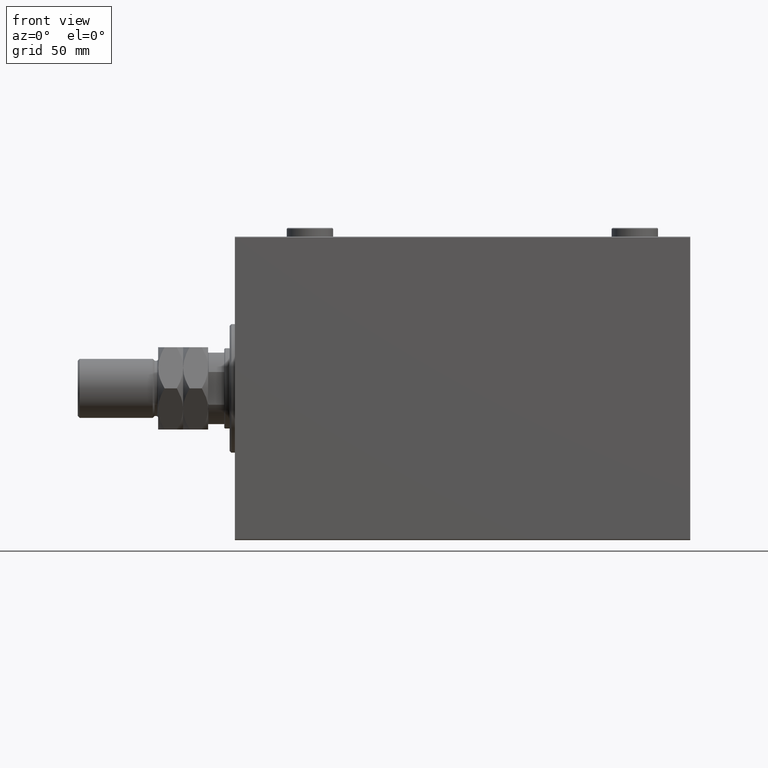
[diagram: clean part render]
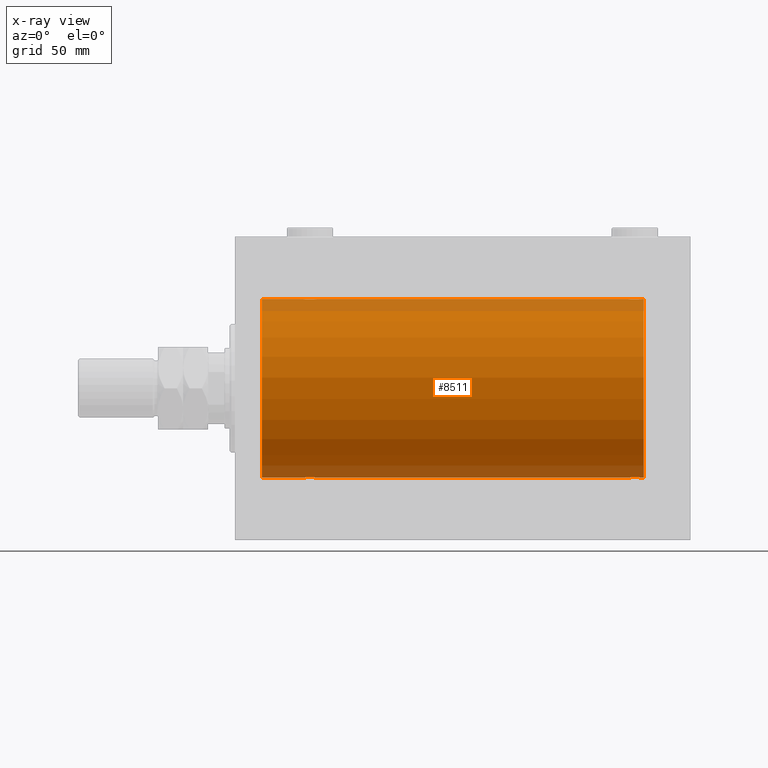
[diagram: x-ray — body ghosted, one internal face saturated and labeled with its STEP entity id]
A machine part, front view, then the same camera in x-ray: the body is ghosted and one INTERNAL B-rep face — a face not visible from any outside direction — is saturated and labeled: STEP entity #8511.
In plain terms, the highlighted cylindrical surface (partial cylindrical patch) has radius 50 mm, axis along (-1, -0, -0).
Its self-contained STEP definition (entity closure, byte-faithful):
#24 = CARTESIAN_POINT ( 'NONE',  ( 40.89676703965784554, -4.113647494206489341, 49.83052139214891696 ) ) ;
#127 = VERTEX_POINT ( 'NONE', #43994 ) ;
#437 = CARTESIAN_POINT ( 'NONE',  ( 227.1992192796128620, -2.811461347331109639, 49.92127983148852621 ) ) ;
#1629 = CARTESIAN_POINT ( 'NONE',  ( 229.0000000000000000, 6.123233995736764507E-15, -50.00000000000000000 ) ) ;
#1950 = ORIENTED_EDGE ( 'NONE', *, *, #32055, .T. ) ;
#2077 = CARTESIAN_POINT ( 'NONE',  ( 37.75000000000000711, -0.2808785465865692443, -50.00000000000001421 ) ) ;
#2213 = VECTOR ( 'NONE', #27100, 1000.000000000000000 ) ;
#2246 = CARTESIAN_POINT ( 'NONE',  ( 225.1032329603422113, -4.113647494206503552, -49.83052139214891696 ) ) ;
#2250 = AXIS2_PLACEMENT_3D ( 'NONE', #36954, #3452, #29043 ) ;
#2484 = CARTESIAN_POINT ( 'NONE',  ( 219.7500000000000284, -2.307503314381865081E-14, -50.00000000000000000 ) ) ;
#2487 = CARTESIAN_POINT ( 'NONE',  ( 220.6248001591803813, -2.597781786597489706, -49.93300953359122474 ) ) ;
#2562 = ORIENTED_EDGE ( 'NONE', *, *, #6142, .T. ) ;
#2614 = CARTESIAN_POINT ( 'NONE',  ( 46.25000000000000000, 6.123233970928580774E-15, -50.00000000000000000 ) ) ;
#2694 = CARTESIAN_POINT ( 'NONE',  ( 41.44002132304352415, -4.222042462213131842, 49.82145436824653473 ) ) ;
#2854 = VECTOR ( 'NONE', #32632, 1000.000000000000000 ) ;
#2920 = CARTESIAN_POINT ( 'NONE',  ( 38.62118282736264518, -2.593114840406135713, 49.93325460257641168 ) ) ;
#2959 = CARTESIAN_POINT ( 'NONE',  ( 38.80078072038718062, -2.811461347331114524, -49.92127983148851200 ) ) ;
#3105 = EDGE_CURVE ( 'NONE', #38427, #14990, #7199, .T. ) ;
#3260 = B_SPLINE_CURVE_WITH_KNOTS ( 'NONE', 3,
 ( #41994, #26894, #23776, #38399, #41525, #5596, #20185, #34791, #16582, #27604, #42234, #9410, #38636, #35026, #2246, #16829, #46087, #13242, #27843, #42472, #9642, #24242, #14401, #43650, #40041, #6987, #2487, #25172, #17066, #10343, #10116, #13947, #32593, #6525 ),
 .UNSPECIFIED., .F., .F.,
 ( 4, 2, 2, 2, 2, 2, 2, 2, 2, 2, 2, 2, 2, 2, 2, 2, 4 ),
 ( 0.01329343152928757002, 0.01412407817529635727, 0.01495472482130514279, 0.01578537146731393004, 0.01661601811332271555, 0.01744666475933150107, 0.01827731140534029006, 0.01910795805134907557, 0.01993860469735786456, 0.02076925134336665008, 0.02159989798937543559, 0.02243054463538422111, 0.02326119128139301009, 0.02409183792740179561, 0.02492248457341058460, 0.02575313121941937011, 0.02658377786542815563 ),
 .UNSPECIFIED. ) ;
#3420 = CARTESIAN_POINT ( 'NONE',  ( 41.44591435119853173, -4.222816005855205113, -49.82138837911246299 ) ) ;
#3449 = LINE ( 'NONE', #17805, #2854 ) ;
#3452 = DIRECTION ( 'NONE',  ( -1.000000000000000000, -0.000000000000000000, -0.000000000000000000 ) ) ;
#3569 = CARTESIAN_POINT ( 'NONE',  ( 220.3106284432061841, -2.128188802142365166, 49.95522967821975158 ) ) ;
#3809 = CARTESIAN_POINT ( 'NONE',  ( 219.7768924720100472, -0.5531336717329080610, 49.99769193709643389 ) ) ;
#4049 = CARTESIAN_POINT ( 'NONE',  ( 227.3751998408197039, -2.597781786597475495, 49.93300953359122474 ) ) ;
#4702 = AXIS2_PLACEMENT_3D ( 'NONE', #12640, #33722, #33961 ) ;
#5499 = EDGE_CURVE ( 'NONE', #34696, #26994, #20750, .T. ) ;
#5596 = CARTESIAN_POINT ( 'NONE',  ( 227.8210058198523598, -1.881229021238126409, -49.96525240872482954 ) ) ;
#6142 = EDGE_CURVE ( 'NONE', #41059, #45469, #13551, .T. ) ;
#6499 = CARTESIAN_POINT ( 'NONE',  ( 38.79696438048009099, -2.807099414226282175, 49.92152599098506727 ) ) ;
#6525 = CARTESIAN_POINT ( 'NONE',  ( 219.7500000000000284, -2.307503314381865081E-14, -50.00000000000000000 ) ) ;
#6535 = CARTESIAN_POINT ( 'NONE',  ( 39.87368355124921493, -3.690299572754719648, -49.86386974736159061 ) ) ;
#6768 = CARTESIAN_POINT ( 'NONE',  ( 39.41179785323800644, -3.382416624899780899, -49.88570010427955737 ) ) ;
#6987 = CARTESIAN_POINT ( 'NONE',  ( 220.8007807203871948, -2.811461347331129179, -49.92127983148851200 ) ) ;
#7199 = LINE ( 'NONE', #33060, #24975 ) ;
#7373 = CARTESIAN_POINT ( 'NONE',  ( 221.1884693348458200, -3.199146701881678823, 49.89793607725462010 ) ) ;
#7585 = EDGE_CURVE ( 'NONE', #41059, #38816, #45338, .T. ) ;
#7608 = CARTESIAN_POINT ( 'NONE',  ( 221.4068727911404721, -3.378657745070632767, 49.88595615988430154 ) ) ;
#8453 = DIRECTION ( 'NONE',  ( -1.000000000000000000, -0.000000000000000000, -0.000000000000000000 ) ) ;
#8511 = ADVANCED_FACE ( 'NONE', ( #22332 ), #21632, .F. ) ;
#8998 = CARTESIAN_POINT ( 'NONE',  ( 46.25000000000001421, -0.2773743941468467811, -50.00000000000002132 ) ) ;
#9132 = CARTESIAN_POINT ( 'NONE',  ( 229.0000000000000000, 0.000000000000000000, 50.00000000000000000 ) ) ;
#9176 = B_SPLINE_CURVE_WITH_KNOTS ( 'NONE', 3,
 ( #32569, #40017, #21797, #20866, #24689, #39322, #10550, #2920, #6499, #32347, #17512, #10318, #46991, #31875, #24, #2694, #32109, #46760, #13925, #24458, #28517, #14375, #42685, #24911, #35479, #39549, #17275, #46527, #13692, #21565, #36413, #25150, #28285, #14147 ),
 .UNSPECIFIED., .F., .F.,
 ( 4, 2, 2, 2, 2, 2, 2, 2, 2, 2, 2, 2, 2, 2, 2, 2, 4 ),
 ( 0.01329343152928758910, 0.01412407817529637635, 0.01495472482130516534, 0.01578537146731395432, 0.01661601811332274331, 0.01744666475933152883, 0.01827731140534032128, 0.01910795805134910680, 0.01993860469735789578, 0.02076925134336668477, 0.02159989798937547029, 0.02243054463538425927, 0.02326119128139304826, 0.02409183792740183377, 0.02492248457341062276, 0.02575313121941941175, 0.02658377786542820073 ),
 .UNSPECIFIED. ) ;
#9238 = CARTESIAN_POINT ( 'NONE',  ( 45.82100581985226029, -1.881229021238118859, -49.96525240872481533 ) ) ;
#9337 = CARTESIAN_POINT ( 'NONE',  ( 14.99999999999998579, 0.000000000000000000, 0.000000000000000000 ) ) ;
#9410 = CARTESIAN_POINT ( 'NONE',  ( 226.1313639944615659, -3.687400765141549019, -49.86408552998298660 ) ) ;
#9642 = CARTESIAN_POINT ( 'NONE',  ( 222.6328935244542890, -4.033756670430873825, -49.83713703490974467 ) ) ;
#9829 = ORIENTED_EDGE ( 'NONE', *, *, #7585, .F. ) ;
#10116 = CARTESIAN_POINT ( 'NONE',  ( 219.8875029891967188, -1.108337267831515982, -49.98846998601261760 ) ) ;
#10318 = CARTESIAN_POINT ( 'NONE',  ( 39.86863600553845544, -3.687400765141540138, 49.86408552998298660 ) ) ;
#10343 = CARTESIAN_POINT ( 'NONE',  ( 219.9692020384465820, -1.375411031076060331, -49.98173289062309976 ) ) ;
#10550 = CARTESIAN_POINT ( 'NONE',  ( 38.31062844320614857, -2.128188802142370495, 49.95522967821975868 ) ) ;
#10584 = CARTESIAN_POINT ( 'NONE',  ( 40.63289352445426772, -4.033756670430847180, -49.83713703490975888 ) ) ;
#10738 = CARTESIAN_POINT ( 'NONE',  ( 220.1789941801477539, -1.881229021238122856, 49.96525240872482954 ) ) ;
#10827 = CARTESIAN_POINT ( 'NONE',  ( 46.03272642097309841, -1.369753890039645761, -49.98188917176552337 ) ) ;
#10973 = CARTESIAN_POINT ( 'NONE',  ( 228.2500000000000284, 3.884128014896634599E-15, 50.00000000000000000 ) ) ;
#11445 = CARTESIAN_POINT ( 'NONE',  ( 220.7969643804801194, -2.807099414226281286, 49.92152599098507437 ) ) ;
#11818 = CARTESIAN_POINT ( 'NONE',  ( 37.75000000000000711, -2.480809774739037926E-23, 50.00000000000000000 ) ) ;
#11833 = CARTESIAN_POINT ( 'NONE',  ( 229.0000000000000000, 6.123233995736764507E-15, -50.00000000000000000 ) ) ;
#12640 = CARTESIAN_POINT ( 'NONE',  ( 229.0000000000000000, 0.000000000000000000, 0.000000000000000000 ) ) ;
#12834 = CARTESIAN_POINT ( 'NONE',  ( 38.62480015918033871, -2.597781786597466613, -49.93300953359121763 ) ) ;
#13071 = CARTESIAN_POINT ( 'NONE',  ( 39.19302168160691480, -3.203153387937326624, -49.89767833571684008 ) ) ;
#13242 = CARTESIAN_POINT ( 'NONE',  ( 223.7227507296208842, -4.250219976861668414, -49.81902879621013369 ) ) ;
#13491 = ORIENTED_EDGE ( 'NONE', *, *, #36443, .T. ) ;
#13551 = B_SPLINE_CURVE_WITH_KNOTS ( 'NONE', 3,
 ( #36131, #14563, #3809, #17921, #43571, #10738, #3569, #15030, #11445, #7373, #7608, #32520, #36605, #21512, #33005, #26041, #14326, #22224, #18387, #36845, #47165, #43331, #28928, #35892, #25800, #437, #4049, #14800, #36361, #18156, #29633, #25332, #39965, #10973 ),
 .UNSPECIFIED., .F., .F.,
 ( 4, 2, 2, 2, 2, 2, 2, 2, 2, 2, 2, 2, 2, 2, 2, 2, 4 ),
 ( 0.01329343152928753879, 0.01412407817529632258, 0.01495472482130510636, 0.01578537146731389187, 0.01661601811332267392, 0.01744666475933145944, 0.01827731140534024495, 0.01910795805134903047, 0.01993860469735781252, 0.02076925134336659456, 0.02159989798937538008, 0.02243054463538416560, 0.02326119128139295111, 0.02409183792740173316, 0.02492248457341051868, 0.02575313121941930072, 0.02658377786542808624 ),
 .UNSPECIFIED. ) ;
#13585 = EDGE_CURVE ( 'NONE', #26994, #37706, #3260, .T. ) ;
#13692 = CARTESIAN_POINT ( 'NONE',  ( 45.81839248987871116, -1.886522330773410250, 49.96505190380065642 ) ) ;
#13925 = CARTESIAN_POINT ( 'NONE',  ( 42.55408564880149669, -4.222816005855215771, 49.82138837911247009 ) ) ;
#13947 = CARTESIAN_POINT ( 'NONE',  ( 219.7775736447922270, -0.5587117664567382569, -49.99763378604802710 ) ) ;
#13959 = CARTESIAN_POINT ( 'NONE',  ( 43.10323296034216156, -4.113647494206477795, -49.83052139214893117 ) ) ;
#14013 = CARTESIAN_POINT ( 'NONE',  ( 228.2500000000000284, 6.123233970934102801E-15, -50.00000000000000000 ) ) ;
#14121 = ORIENTED_EDGE ( 'NONE', *, *, #28545, .T. ) ;
#14147 = CARTESIAN_POINT ( 'NONE',  ( 46.25000000000000000, 6.549608351002387256E-15, 50.00000000000000000 ) ) ;
#14151 = CARTESIAN_POINT ( 'NONE',  ( 229.0000000000000000, 0.000000000000000000, 50.00000000000000000 ) ) ;
#14326 = CARTESIAN_POINT ( 'NONE',  ( 223.7160471297330560, -4.249777379711418668, 49.81906655360197789 ) ) ;
#14375 = CARTESIAN_POINT ( 'NONE',  ( 43.88217049484444487, -3.820681512513385059, 49.85392475515401145 ) ) ;
#14401 = CARTESIAN_POINT ( 'NONE',  ( 221.8736835512492576, -3.690299572754756952, -49.86386974736159061 ) ) ;
#14563 = CARTESIAN_POINT ( 'NONE',  ( 219.7500000000000000, -0.2773743941468553853, 50.00000000000000711 ) ) ;
#14580 = AXIS2_PLACEMENT_3D ( 'NONE', #9337, #30648, #45300 ) ;
#14800 = CARTESIAN_POINT ( 'NONE',  ( 227.6860283212195668, -2.133925816755189775, 49.95498245321557818 ) ) ;
#14852 = DIRECTION ( 'NONE',  ( -1.000000000000000000, -0.000000000000000000, -0.000000000000000000 ) ) ;
#14990 = VERTEX_POINT ( 'NONE', #25061 ) ;
#15030 = CARTESIAN_POINT ( 'NONE',  ( 220.6211828273626452, -2.593114840406131716, 49.93325460257641168 ) ) ;
#15243 = CARTESIAN_POINT ( 'NONE',  ( 46.25000000000000000, 6.123233970928580774E-15, -50.00000000000000000 ) ) ;
#15368 = VECTOR ( 'NONE', #8453, 1000.000000000000000 ) ;
#15407 = CARTESIAN_POINT ( 'NONE',  ( 229.0000000000000000, 0.000000000000000000, 50.00000000000000000 ) ) ;
#15510 = CARTESIAN_POINT ( 'NONE',  ( 228.2500000000000284, 3.884128014896634599E-15, 50.00000000000000000 ) ) ;
#16582 = CARTESIAN_POINT ( 'NONE',  ( 227.2030356195199658, -2.807099414226289280, -49.92152599098506727 ) ) ;
#16829 = CARTESIAN_POINT ( 'NONE',  ( 224.5599786769565469, -4.222042462213146941, -49.82145436824653473 ) ) ;
#17066 = CARTESIAN_POINT ( 'NONE',  ( 220.1816075101212959, -1.886522330773437339, -49.96505190380065642 ) ) ;
#17191 = B_SPLINE_CURVE_WITH_KNOTS ( 'NONE', 3,
 ( #15243, #8998, #29837, #23609, #10827, #9238, #31019, #32379, #47249, #35982, #34856, #32606, #25183, #35745, #13959, #20019, #45670, #38469, #3420, #23843, #10584, #29010, #6535, #6768, #13071, #2959, #12834, #45913, #27434, #31261, #20255, #18002, #2077, #46798 ),
 .UNSPECIFIED., .F., .F.,
 ( 4, 2, 2, 2, 2, 2, 2, 2, 2, 2, 2, 2, 2, 2, 2, 2, 4 ),
 ( 0.01329343152928757002, 0.01412407817529635554, 0.01495472482130513932, 0.01578537146731392310, 0.01661601811332270862, 0.01744666475933149413, 0.01827731140534027965, 0.01910795805134906516, 0.01993860469735784721, 0.02076925134336663273, 0.02159989798937541824, 0.02243054463538420029, 0.02326119128139298581, 0.02409183792740176785, 0.02492248457341054990, 0.02575313121941933542, 0.02658377786542811747 ),
 .UNSPECIFIED. ) ;
#17194 = CARTESIAN_POINT ( 'NONE',  ( 229.0000000000000000, 6.123233995736764507E-15, -50.00000000000000000 ) ) ;
#17207 = EDGE_CURVE ( 'NONE', #127, #14990, #33734, .T. ) ;
#17275 = CARTESIAN_POINT ( 'NONE',  ( 45.37519984081966840, -2.597781786597467057, 49.93300953359123184 ) ) ;
#17512 = CARTESIAN_POINT ( 'NONE',  ( 39.40687279114045083, -3.378657745070634544, 49.88595615988430154 ) ) ;
#17665 = ORIENTED_EDGE ( 'NONE', *, *, #17804, .F. ) ;
#17804 = EDGE_CURVE ( 'NONE', #36841, #45469, #26405, .T. ) ;
#17805 = CARTESIAN_POINT ( 'NONE',  ( 229.0000000000000000, 6.123233995736764507E-15, -50.00000000000000000 ) ) ;
#17921 = CARTESIAN_POINT ( 'NONE',  ( 219.8856808669399356, -1.101350136471747510, 49.98862054280448319 ) ) ;
#18002 = CARTESIAN_POINT ( 'NONE',  ( 37.77757364479218438, -0.5587117664567184949, -49.99763378604801289 ) ) ;
#18156 = CARTESIAN_POINT ( 'NONE',  ( 228.0307979615534748, -1.375411031076043678, 49.98173289062309976 ) ) ;
#18387 = CARTESIAN_POINT ( 'NONE',  ( 224.5540856488015322, -4.222816005855221100, 49.82138837911247009 ) ) ;
#19198 = CIRCLE ( 'NONE', #4702, 50.00000000000000000 ) ;
#20019 = CARTESIAN_POINT ( 'NONE',  ( 42.55997867695647585, -4.222042462213118519, -49.82145436824654894 ) ) ;
#20185 = CARTESIAN_POINT ( 'NONE',  ( 227.6893715567939580, -2.128188802142370495, -49.95522967821975158 ) ) ;
#20255 = CARTESIAN_POINT ( 'NONE',  ( 37.88750298919665482, -1.108337267831493556, -49.98846998601261760 ) ) ;
#20750 = LINE ( 'NONE', #1629, #31201 ) ;
#20866 = CARTESIAN_POINT ( 'NONE',  ( 37.88568086693990722, -1.101350136471746843, 49.98862054280448319 ) ) ;
#21512 = CARTESIAN_POINT ( 'NONE',  ( 222.6266656342096724, -4.031616700143203502, 49.83731072121799599 ) ) ;
#21565 = CARTESIAN_POINT ( 'NONE',  ( 46.03079796155343217, -1.375411031076034352, 49.98173289062309976 ) ) ;
#21609 = CARTESIAN_POINT ( 'NONE',  ( 219.7500000000000284, -2.480257572105383217E-23, 50.00000000000000000 ) ) ;
#21632 = CYLINDRICAL_SURFACE ( 'NONE', #2250, 50.00000000000000000 ) ;
#21797 = CARTESIAN_POINT ( 'NONE',  ( 37.77689247201000455, -0.5531336717329072838, 49.99769193709643389 ) ) ;
#22224 = CARTESIAN_POINT ( 'NONE',  ( 224.2772492703792011, -4.250219976861659532, 49.81902879621013369 ) ) ;
#22332 = FACE_OUTER_BOUND ( 'NONE', #39934, .T. ) ;
#23609 = CARTESIAN_POINT ( 'NONE',  ( 46.11431913306008568, -1.101350136471737295, -49.98862054280449030 ) ) ;
#23776 = CARTESIAN_POINT ( 'NONE',  ( 228.2231075279900381, -0.5531336717329033981, -49.99769193709643389 ) ) ;
#23843 = CARTESIAN_POINT ( 'NONE',  ( 40.90262382120963736, -4.115209769591108291, -49.83039196709104601 ) ) ;
#24082 = VERTEX_POINT ( 'NONE', #2614 ) ;
#24242 = CARTESIAN_POINT ( 'NONE',  ( 222.1178295051556120, -3.820681512513405931, -49.85392475515401145 ) ) ;
#24458 = CARTESIAN_POINT ( 'NONE',  ( 43.09737617879037685, -4.115209769591117173, 49.83039196709103180 ) ) ;
#24579 = DIRECTION ( 'NONE',  ( -1.000000000000000000, -0.000000000000000000, -0.000000000000000000 ) ) ;
#24689 = CARTESIAN_POINT ( 'NONE',  ( 37.96727357902688738, -1.369753890039657085, 49.98188917176553048 ) ) ;
#24911 = CARTESIAN_POINT ( 'NONE',  ( 44.58820214676201488, -3.382416624899783120, 49.88570010427955737 ) ) ;
#24975 = VECTOR ( 'NONE', #14852, 1000.000000000000000 ) ;
#25061 = CARTESIAN_POINT ( 'NONE',  ( 14.99999999999998579, 0.000000000000000000, 50.00000000000000000 ) ) ;
#25150 = CARTESIAN_POINT ( 'NONE',  ( 46.22242635520782272, -0.5587117664567085029, 49.99763378604804132 ) ) ;
#25172 = CARTESIAN_POINT ( 'NONE',  ( 220.3139716787804332, -2.133925816755204874, -49.95498245321555686 ) ) ;
#25183 = CARTESIAN_POINT ( 'NONE',  ( 43.88744739392798522, -3.818052230167713113, -49.85412671291930309 ) ) ;
#25332 = CARTESIAN_POINT ( 'NONE',  ( 228.2224263552078014, -0.5587117664567151643, 49.99763378604802000 ) ) ;
#25347 = ORIENTED_EDGE ( 'NONE', *, *, #46570, .F. ) ;
#25800 = CARTESIAN_POINT ( 'NONE',  ( 226.8069783183931349, -3.203153387937327512, 49.89767833571684008 ) ) ;
#26041 = CARTESIAN_POINT ( 'NONE',  ( 223.4400213230435668, -4.222042462213138947, 49.82145436824653473 ) ) ;
#26405 = LINE ( 'NONE', #15407, #15368 ) ;
#26508 = ORIENTED_EDGE ( 'NONE', *, *, #27903, .T. ) ;
#26894 = CARTESIAN_POINT ( 'NONE',  ( 228.2500000000000568, -0.2773743941468493901, -50.00000000000000711 ) ) ;
#26994 = VERTEX_POINT ( 'NONE', #14013 ) ;
#27100 = DIRECTION ( 'NONE',  ( -1.000000000000000000, -0.000000000000000000, -0.000000000000000000 ) ) ;
#27434 = CARTESIAN_POINT ( 'NONE',  ( 38.18160751012128884, -1.886522330773421574, -49.96505190380066352 ) ) ;
#27604 = CARTESIAN_POINT ( 'NONE',  ( 226.8115306651542085, -3.199146701881684596, -49.89793607725460589 ) ) ;
#27843 = CARTESIAN_POINT ( 'NONE',  ( 223.4459143511985246, -4.222816005855230870, -49.82138837911247009 ) ) ;
#27903 = EDGE_CURVE ( 'NONE', #24082, #35291, #17191, .T. ) ;
#28204 = LINE ( 'NONE', #17194, #33320 ) ;
#28285 = CARTESIAN_POINT ( 'NONE',  ( 46.25000000000004974, -0.2808785465865676345, 50.00000000000002842 ) ) ;
#28517 = CARTESIAN_POINT ( 'NONE',  ( 43.36710647554575360, -4.033756670430853397, 49.83713703490974467 ) ) ;
#28545 = EDGE_CURVE ( 'NONE', #35291, #127, #28204, .T. ) ;
#28928 = CARTESIAN_POINT ( 'NONE',  ( 226.1263164487508277, -3.690299572754730306, 49.86386974736159061 ) ) ;
#29010 = CARTESIAN_POINT ( 'NONE',  ( 40.11782950515556934, -3.820681512513380618, -49.85392475515399724 ) ) ;
#29043 = DIRECTION ( 'NONE',  ( 0.000000000000000000, 0.000000000000000000, 1.000000000000000000 ) ) ;
#29633 = CARTESIAN_POINT ( 'NONE',  ( 228.1124970108033949, -1.108337267831494222, 49.98846998601261760 ) ) ;
#29837 = CARTESIAN_POINT ( 'NONE',  ( 46.22310752799000255, -0.5531336717328981800, -49.99769193709643389 ) ) ;
#30083 = ORIENTED_EDGE ( 'NONE', *, *, #17207, .T. ) ;
#30648 = DIRECTION ( 'NONE',  ( -1.000000000000000000, 0.000000000000000000, 0.000000000000000000 ) ) ;
#31019 = CARTESIAN_POINT ( 'NONE',  ( 45.68937155679385143, -2.128188802142360281, -49.95522967821973737 ) ) ;
#31201 = VECTOR ( 'NONE', #24579, 1000.000000000000000 ) ;
#31261 = CARTESIAN_POINT ( 'NONE',  ( 37.96920203844657493, -1.375411031076047230, -49.98173289062308555 ) ) ;
#31875 = CARTESIAN_POINT ( 'NONE',  ( 40.62666563420964394, -4.031616700143194620, 49.83731072121800310 ) ) ;
#32055 = EDGE_CURVE ( 'NONE', #38427, #38816, #9176, .T. ) ;
#32109 = CARTESIAN_POINT ( 'NONE',  ( 41.71604712973302043, -4.249777379711411562, 49.81906655360197789 ) ) ;
#32347 = CARTESIAN_POINT ( 'NONE',  ( 39.18846933484581996, -3.199146701881677934, 49.89793607725461300 ) ) ;
#32379 = CARTESIAN_POINT ( 'NONE',  ( 45.37881717263736192, -2.593114840406123722, -49.93325460257639037 ) ) ;
#32520 = CARTESIAN_POINT ( 'NONE',  ( 221.8686360055384910, -3.687400765141541026, 49.86408552998298660 ) ) ;
#32569 = CARTESIAN_POINT ( 'NONE',  ( 37.75000000000000711, -2.480809774739037926E-23, 50.00000000000000000 ) ) ;
#32593 = CARTESIAN_POINT ( 'NONE',  ( 219.7500000000000853, -0.2808785465865917264, -50.00000000000001421 ) ) ;
#32606 = CARTESIAN_POINT ( 'NONE',  ( 44.13136399446154456, -3.687400765141527259, -49.86408552998295818 ) ) ;
#32632 = DIRECTION ( 'NONE',  ( -1.000000000000000000, -0.000000000000000000, -0.000000000000000000 ) ) ;
#33005 = CARTESIAN_POINT ( 'NONE',  ( 222.8967670396579024, -4.113647494206499111, 49.83052139214891696 ) ) ;
#33060 = CARTESIAN_POINT ( 'NONE',  ( 229.0000000000000000, 0.000000000000000000, 50.00000000000000000 ) ) ;
#33320 = VECTOR ( 'NONE', #35870, 1000.000000000000000 ) ;
#33722 = DIRECTION ( 'NONE',  ( -1.000000000000000000, 0.000000000000000000, 0.000000000000000000 ) ) ;
#33734 = CIRCLE ( 'NONE', #14580, 50.00000000000000000 ) ;
#33961 = DIRECTION ( 'NONE',  ( 0.000000000000000000, 0.000000000000000000, 1.000000000000000000 ) ) ;
#34696 = VERTEX_POINT ( 'NONE', #11833 ) ;
#34791 = CARTESIAN_POINT ( 'NONE',  ( 227.3788171726373264, -2.593114840406136157, -49.93325460257641879 ) ) ;
#34856 = CARTESIAN_POINT ( 'NONE',  ( 44.59312720885954917, -3.378657745070622997, -49.88595615988429444 ) ) ;
#35026 = CARTESIAN_POINT ( 'NONE',  ( 225.3733343657904697, -4.031616700143205279, -49.83731072121799599 ) ) ;
#35291 = VERTEX_POINT ( 'NONE', #47201 ) ;
#35409 = ORIENTED_EDGE ( 'NONE', *, *, #3105, .F. ) ;
#35479 = CARTESIAN_POINT ( 'NONE',  ( 44.80697831839310652, -3.203153387937319962, 49.89767833571683298 ) ) ;
#35745 = CARTESIAN_POINT ( 'NONE',  ( 43.37333436579037738, -4.031616700143179521, -49.83731072121799599 ) ) ;
#35870 = DIRECTION ( 'NONE',  ( -1.000000000000000000, -0.000000000000000000, -0.000000000000000000 ) ) ;
#35892 = CARTESIAN_POINT ( 'NONE',  ( 226.5882021467620859, -3.382416624899788893, 49.88570010427955737 ) ) ;
#35982 = CARTESIAN_POINT ( 'NONE',  ( 44.81153066515419425, -3.199146701881665500, -49.89793607725460589 ) ) ;
#36131 = CARTESIAN_POINT ( 'NONE',  ( 219.7500000000000284, -2.480257572105383217E-23, 50.00000000000000000 ) ) ;
#36133 = ORIENTED_EDGE ( 'NONE', *, *, #13585, .T. ) ;
#36361 = CARTESIAN_POINT ( 'NONE',  ( 227.8183924898787609, -1.886522330773421574, 49.96505190380066352 ) ) ;
#36413 = CARTESIAN_POINT ( 'NONE',  ( 46.11249701080335228, -1.108337267831486228, 49.98846998601261760 ) ) ;
#36443 = EDGE_CURVE ( 'NONE', #37706, #24082, #3449, .T. ) ;
#36605 = CARTESIAN_POINT ( 'NONE',  ( 222.1125526060720290, -3.818052230167736649, 49.85412671291929598 ) ) ;
#36841 = VERTEX_POINT ( 'NONE', #14151 ) ;
#36845 = CARTESIAN_POINT ( 'NONE',  ( 225.0973761787904550, -4.115209769591120725, 49.83039196709102470 ) ) ;
#36954 = CARTESIAN_POINT ( 'NONE',  ( 229.0000000000000000, 0.000000000000000000, 0.000000000000000000 ) ) ;
#37706 = VERTEX_POINT ( 'NONE', #2484 ) ;
#38399 = CARTESIAN_POINT ( 'NONE',  ( 228.1143191330600359, -1.101350136471743069, -49.98862054280448319 ) ) ;
#38427 = VERTEX_POINT ( 'NONE', #11818 ) ;
#38469 = CARTESIAN_POINT ( 'NONE',  ( 41.72275072962081310, -4.250219976861640880, -49.81902879621016211 ) ) ;
#38636 = CARTESIAN_POINT ( 'NONE',  ( 225.8874473939280563, -3.818052230167736205, -49.85412671291930309 ) ) ;
#38816 = VERTEX_POINT ( 'NONE', #45078 ) ;
#39322 = CARTESIAN_POINT ( 'NONE',  ( 38.17899418014773971, -1.881229021238131294, 49.96525240872482954 ) ) ;
#39549 = CARTESIAN_POINT ( 'NONE',  ( 45.19921927961284069, -2.811461347331105642, 49.92127983148852621 ) ) ;
#39934 = EDGE_LOOP ( 'NONE', ( #25347, #41936, #36133, #13491, #26508, #14121, #30083, #35409, #1950, #9829, #2562, #17665 ) ) ;
#39965 = CARTESIAN_POINT ( 'NONE',  ( 228.2500000000000568, -0.2808785465865649145, 50.00000000000001421 ) ) ;
#40017 = CARTESIAN_POINT ( 'NONE',  ( 37.75000000000000711, -0.2773743941468536089, 50.00000000000000000 ) ) ;
#40041 = CARTESIAN_POINT ( 'NONE',  ( 221.1930216816069503, -3.203153387937343499, -49.89767833571684008 ) ) ;
#41059 = VERTEX_POINT ( 'NONE', #21609 ) ;
#41525 = CARTESIAN_POINT ( 'NONE',  ( 228.0327264209731766, -1.369753890039650646, -49.98188917176553048 ) ) ;
#41936 = ORIENTED_EDGE ( 'NONE', *, *, #5499, .T. ) ;
#41994 = CARTESIAN_POINT ( 'NONE',  ( 228.2500000000000284, 6.123233970934102801E-15, -50.00000000000000000 ) ) ;
#42234 = CARTESIAN_POINT ( 'NONE',  ( 226.5931272088596415, -3.378657745070642981, -49.88595615988430154 ) ) ;
#42472 = CARTESIAN_POINT ( 'NONE',  ( 222.9026238212096587, -4.115209769591131383, -49.83039196709102470 ) ) ;
#42685 = CARTESIAN_POINT ( 'NONE',  ( 44.12631644875080639, -3.690299572754724977, 49.86386974736159772 ) ) ;
#43331 = CARTESIAN_POINT ( 'NONE',  ( 225.8821704948444733, -3.820681512513395717, 49.85392475515401145 ) ) ;
#43571 = CARTESIAN_POINT ( 'NONE',  ( 219.9672735790269087, -1.369753890039649091, 49.98188917176553048 ) ) ;
#43650 = CARTESIAN_POINT ( 'NONE',  ( 221.4117978532380562, -3.382416624899818647, -49.88570010427955737 ) ) ;
#43994 = CARTESIAN_POINT ( 'NONE',  ( 14.99999999999998579, 6.123233995736764507E-15, -50.00000000000000000 ) ) ;
#45078 = CARTESIAN_POINT ( 'NONE',  ( 46.25000000000000000, 6.549608351002387256E-15, 50.00000000000000000 ) ) ;
#45300 = DIRECTION ( 'NONE',  ( 0.000000000000000000, 0.000000000000000000, 1.000000000000000000 ) ) ;
#45338 = LINE ( 'NONE', #9132, #2213 ) ;
#45469 = VERTEX_POINT ( 'NONE', #15510 ) ;
#45670 = CARTESIAN_POINT ( 'NONE',  ( 42.28395287026698668, -4.249777379711400016, -49.81906655360198499 ) ) ;
#45913 = CARTESIAN_POINT ( 'NONE',  ( 38.31397167878049714, -2.133925816755183114, -49.95498245321555686 ) ) ;
#46087 = CARTESIAN_POINT ( 'NONE',  ( 224.2839528702670293, -4.249777379711429326, -49.81906655360197789 ) ) ;
#46527 = CARTESIAN_POINT ( 'NONE',  ( 45.68602832121950286, -2.133925816755181337, 49.95498245321556396 ) ) ;
#46570 = EDGE_CURVE ( 'NONE', #34696, #36841, #19198, .T. ) ;
#46760 = CARTESIAN_POINT ( 'NONE',  ( 42.27724927037918690, -4.250219976861652427, 49.81902879621014080 ) ) ;
#46798 = CARTESIAN_POINT ( 'NONE',  ( 37.75000000000000711, -6.867186738287116403E-15, -50.00000000000000000 ) ) ;
#46991 = CARTESIAN_POINT ( 'NONE',  ( 40.11255260607201478, -3.818052230167726879, 49.85412671291930309 ) ) ;
#47165 = CARTESIAN_POINT ( 'NONE',  ( 225.3671064755457678, -4.033756670430863167, 49.83713703490974467 ) ) ;
#47201 = CARTESIAN_POINT ( 'NONE',  ( 37.75000000000000711, -6.867186738287116403E-15, -50.00000000000000000 ) ) ;
#47249 = CARTESIAN_POINT ( 'NONE',  ( 45.20303561951989479, -2.807099414226270628, -49.92152599098506016 ) ) ;